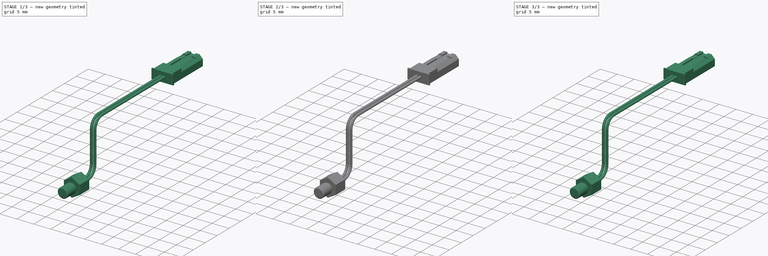
[diagram: build sequence overview — one tinted view per stage of 3, left to right]
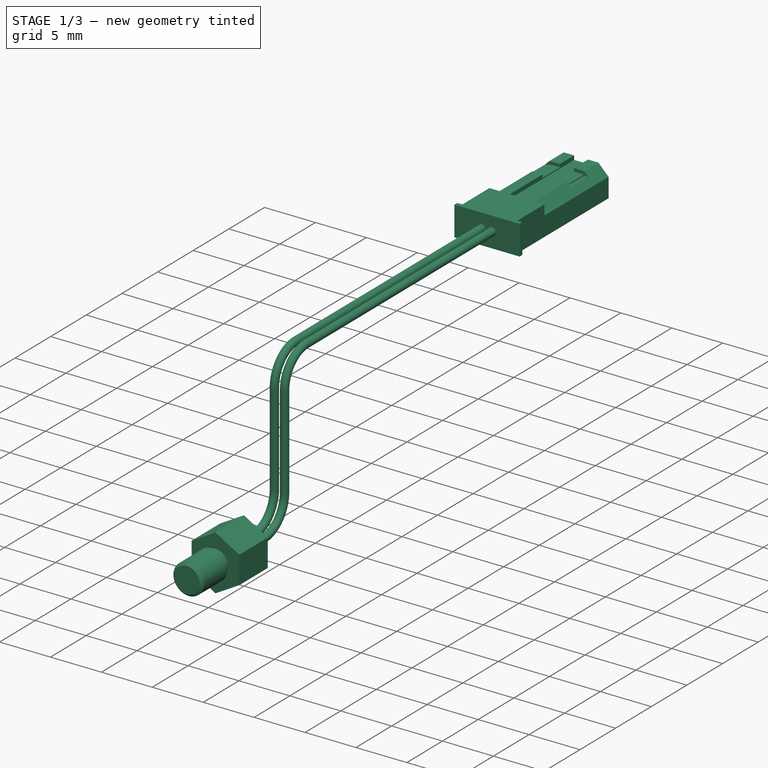
[diagram: stage 1 of 3 — iso view after this stage's code; geometry added in this stage tinted green]
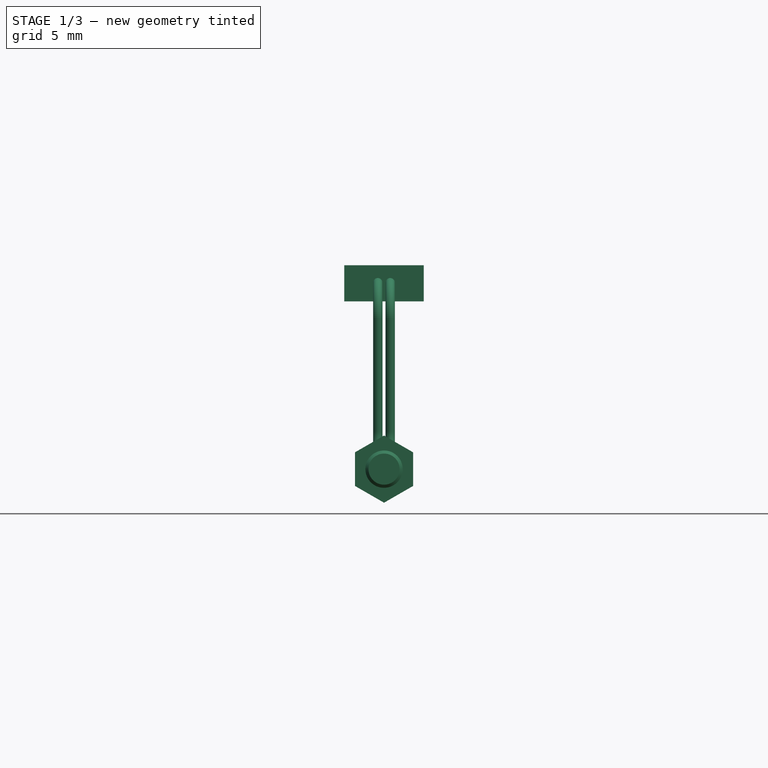
[diagram: stage 1 of 3 — front view after this stage's code; geometry added in this stage tinted green]
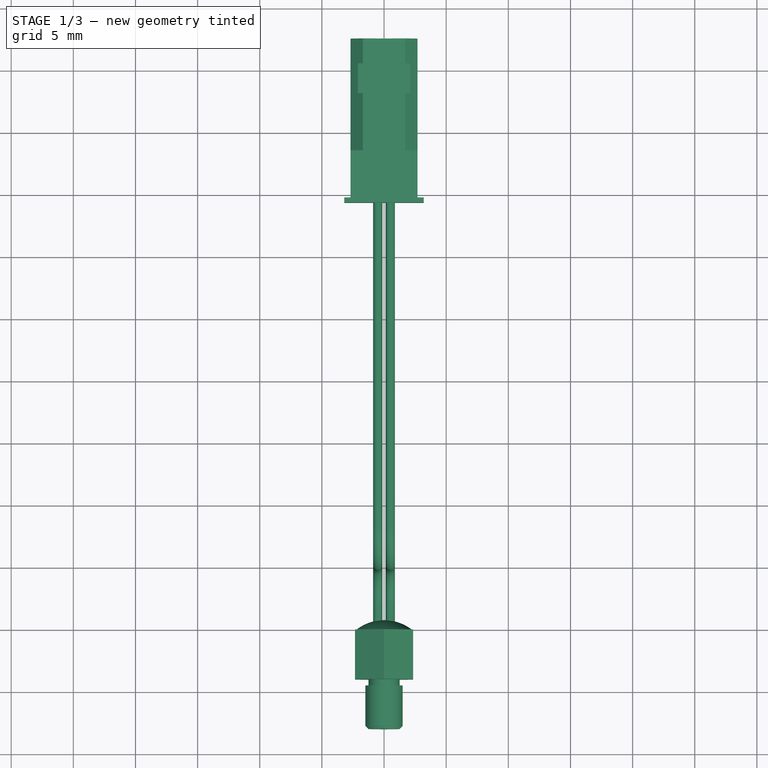
[diagram: stage 1 of 3 — top view after this stage's code; geometry added in this stage tinted green]
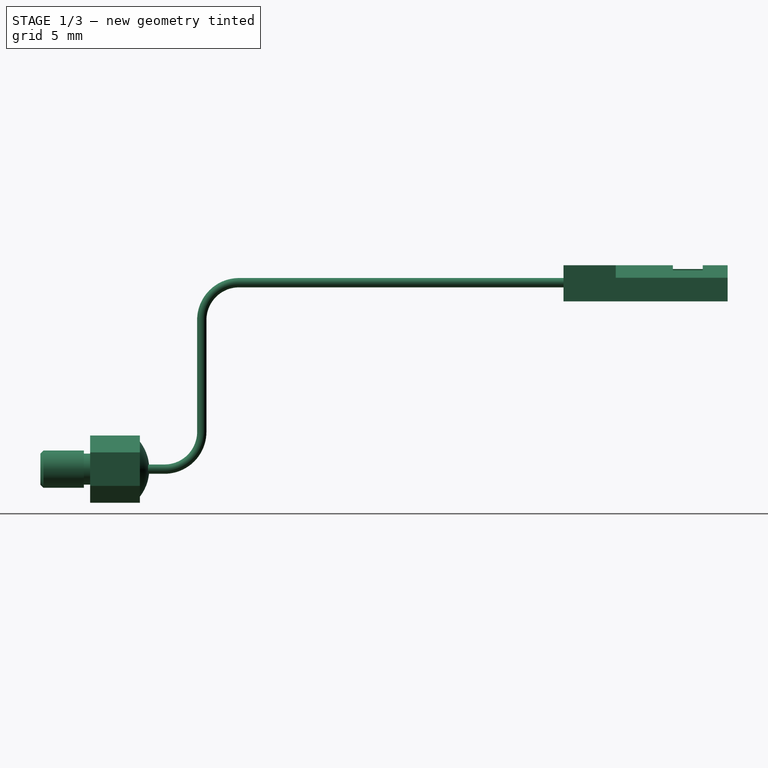
[diagram: stage 1 of 3 — right view after this stage's code; geometry added in this stage tinted green]
FCSTD DOCUMENT  (FreeCAD 0.14R3702 (Git))
Label: hotend-thermistor
License: CC-BY 3.0
LicenseURL: http://creativecommons.org/licenses/by/3.0/
objects: Part::Feature×5, Sketcher::SketchObject×3, PartDesign::Pad×3, App::DocumentObjectGroup×2, Part::Chamfer×1, Part::Sphere×1, Part::MultiFuse×1, Part::Part2DObjectPython×1, Part::Sweep×1, Part::Compound×1
note: 20 computed .brp shape members not serialized (recipe doc carries the construction recipe); baked Part::Feature solids carry a one-line shape summary decoded from their .brp

FEATURE [Part::Sphere] Sphere  label="Sphere-thermistor-back-cover"
  Angle1 = 51
  Angle2 = 90
  Angle3 = 360
  Placement = pos=(0.00718287,-2.85818,0) rot=(-1,0,0;1.5708rad)
  Radius = 3.62
FEATURE [Part::Feature] Fusion001  label="thermistor-bod-final"
  shape: bbox 4.68 x 8.762 x 5.404 mm, 14 faces (baked)
FEATURE [App::DocumentObjectGroup] Group  label="thermistor-body-src"
  Group = -> [Pad,Pad001,Fusion]
FEATURE [Part::Feature] Wire  label="Wire-path"
  shape: bbox 2e-07 x 33.44 x 15 mm, 0 faces, 0 solids (baked)
FEATURE [Part::Part2DObjectPython] Circle  label="wire-section"  # Draft 2D object (typed FeaturePython)
  FirstAngle = 0
  LastAngle = 0
  MakeFace = false
  Placement = pos=(0.496646,0.654968,0.000689865) rot=(1,0,0;1.5708rad)
  Radius = 0.375
FEATURE [Part::Sweep] Sweep  label="wire-master"
  Frenet = true
  Sections = -> [Circle]
  Solid = true
  Spine = -> Wire [Edge5,Edge4,Edge3,Edge2,Edge1]
  Transition = 1
FEATURE [Part::Feature] Sweep001  label="wire-1"
  Placement = pos=(-1,0,0) rot=(0,0,1;0rad)
  shape: bbox 0.75 x 33.44 x 16.31 mm, 7 faces (baked)
FEATURE [Part::Feature] Sweep002  label="wire-2"
  shape: bbox 0.75 x 33.44 x 16.31 mm, 7 faces (baked)
FEATURE [App::DocumentObjectGroup] Group001  label="thermistor-wires-src"
  Group = -> [Sweep,Wire]
FEATURE [Part::Feature] Chamfer001  label="hotend-thermistor-connector-final"
  Placement = pos=(-0.00335414,34.0934,14.9507) rot=(0,0,1;0rad)
  shape: bbox 6.4 x 13.2 x 2.9 mm, 48 faces (baked)
FEATURE [Part::Compound] Compound  label="hotend-thermistor-final"
  Links = -> [Fusion001,Sweep001,Sweep002,Chamfer001]
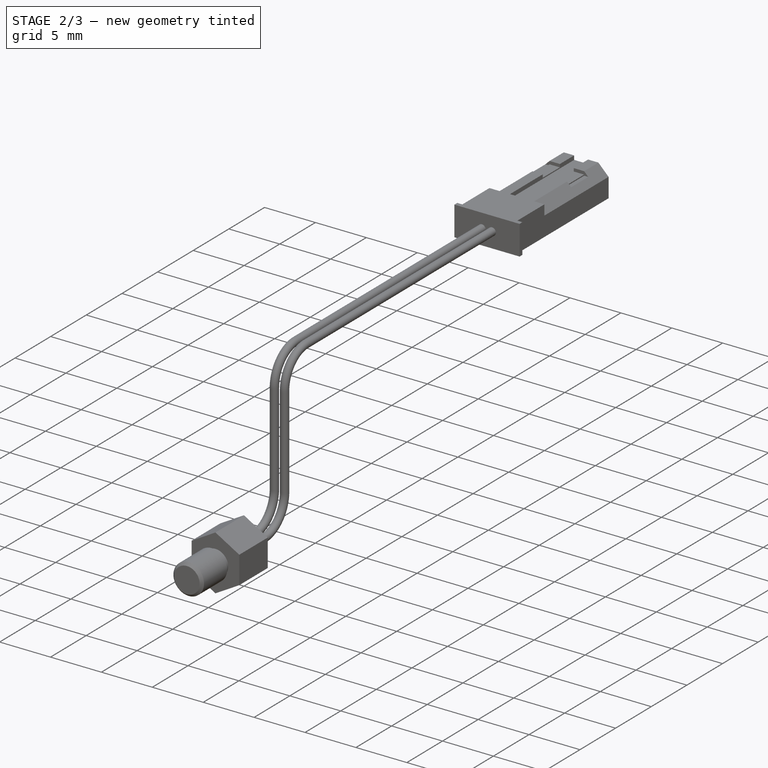
[diagram: stage 2 of 3 — iso view after this stage's code; geometry added in this stage tinted green]
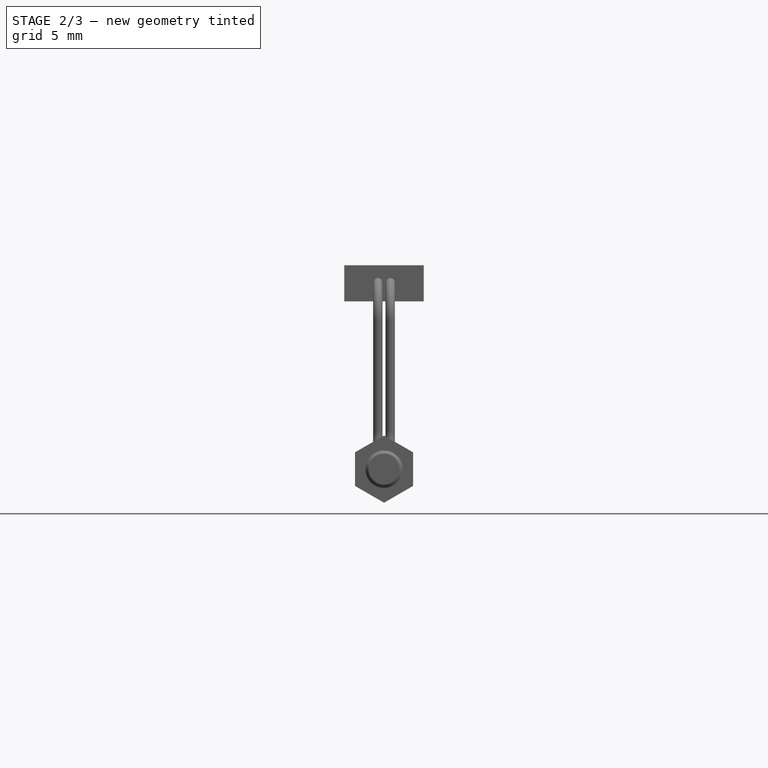
[diagram: stage 2 of 3 — front view after this stage's code; geometry added in this stage tinted green]
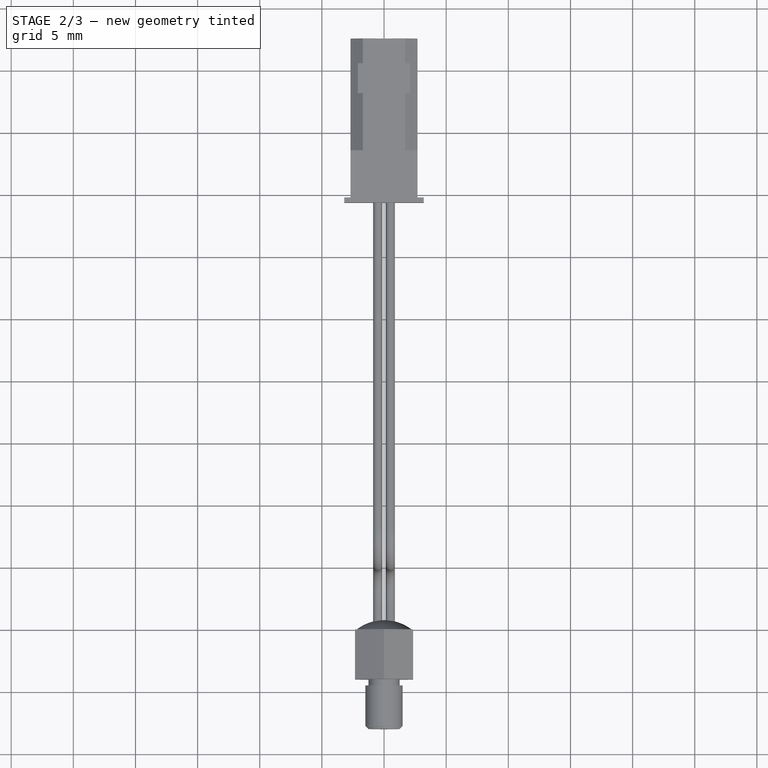
[diagram: stage 2 of 3 — top view after this stage's code; geometry added in this stage tinted green]
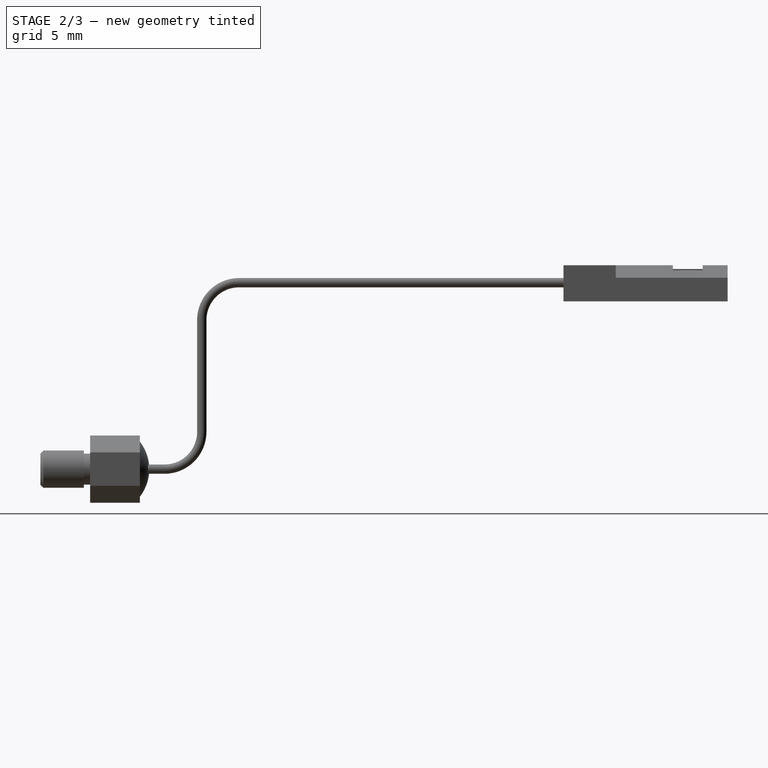
[diagram: stage 2 of 3 — right view after this stage's code; geometry added in this stage tinted green]
FEATURE [Sketcher::SketchObject] Sketch  label="main-body-sketch"
  Placement = pos=(0,0,0) rot=(1,0,0;1.5708rad)
  sketch-geometry (9):
    g0: LineSegment [constr] StartX=0 StartY=2.702 StartZ=0 EndX=0 EndY=0 EndZ=0
    g1: LineSegment [constr] StartX=-2.34 StartY=0 StartZ=0 EndX=0 EndY=0 EndZ=0
    g2: LineSegment StartX=0 StartY=2.702 StartZ=0 EndX=-2.34 EndY=1.351 EndZ=0
    g3: LineSegment StartX=-2.34 StartY=1.351 StartZ=0 EndX=-2.34 EndY=-1.351 EndZ=0
    g4: LineSegment [constr] StartX=-2.34 StartY=1.351 StartZ=0 EndX=0 EndY=0 EndZ=0
    g5: LineSegment StartX=-2.34 StartY=-1.351 StartZ=0 EndX=0 EndY=-2.702 EndZ=0
    g6: LineSegment StartX=0 StartY=-2.702 StartZ=0 EndX=2.34 EndY=-1.351 EndZ=0
    g7: LineSegment StartX=2.34 StartY=-1.351 StartZ=0 EndX=2.34 EndY=1.351 EndZ=0
    g8: LineSegment StartX=2.34 StartY=1.351 StartZ=0 EndX=0 EndY=2.702 EndZ=0
  constraints (22):
    c: Horizontal(g1)
    c: Coincident(g2,g3)
    c: PointOnObject(g1,g3)
    c: Coincident(g2,g0)
    c: Coincident(g2,g4)
    c: Symmetric(g3,g2,g1)
    c: Angle(g0,g4) = 1.0472
    c: Vertical(g0)
    c: Coincident(g0,g1)
    c: Coincident(g4,g0)
    c: Equal(g4,g0)
    c: Coincident(g3,g5)
    c: Coincident(g5,g6)
    c: Coincident(g6,g7)
    c: Vertical(g7)
    c: Coincident(g7,g8)
    c: Coincident(g8,g0)
    c: Symmetric(g3,g6,g0)
    c: Symmetric(g5,g0,g1)
    c: Symmetric(g7,g2,g0)
    c: DistanceX(g2,g7) = 4.68
    c: Coincident(g0,g-1)
FEATURE [PartDesign::Pad] Pad  label="main-body"
  Length = 4
  Length2 = 100
  Placement = pos=(0,0,0) rot=(1,0,0;1.5708rad)
  Sketch = -> Sketch
  Type = 0
FEATURE [Sketcher::SketchObject] Sketch001  label="cylinder-1-sketch"
  Placement = pos=(0,-4,0) rot=(1,0,0;1.5708rad)
  Support = -> Pad [Face8]
  sketch-geometry (1):
    g0: Circle CenterX=0 CenterY=0 CenterZ=0 NormalX=0 NormalY=0 NormalZ=1 Radius=1.25
  constraints (2):
    c: Coincident(g0,g-1)
    c: Radius(g0) = 1.25
FEATURE [PartDesign::Pad] Pad001  label="cylinder-1"
  Length = 0.5
  Length2 = 100
  Placement = pos=(0,0,0) rot=(1,0,0;1.5708rad)
  Sketch = -> Sketch001
  Type = 0
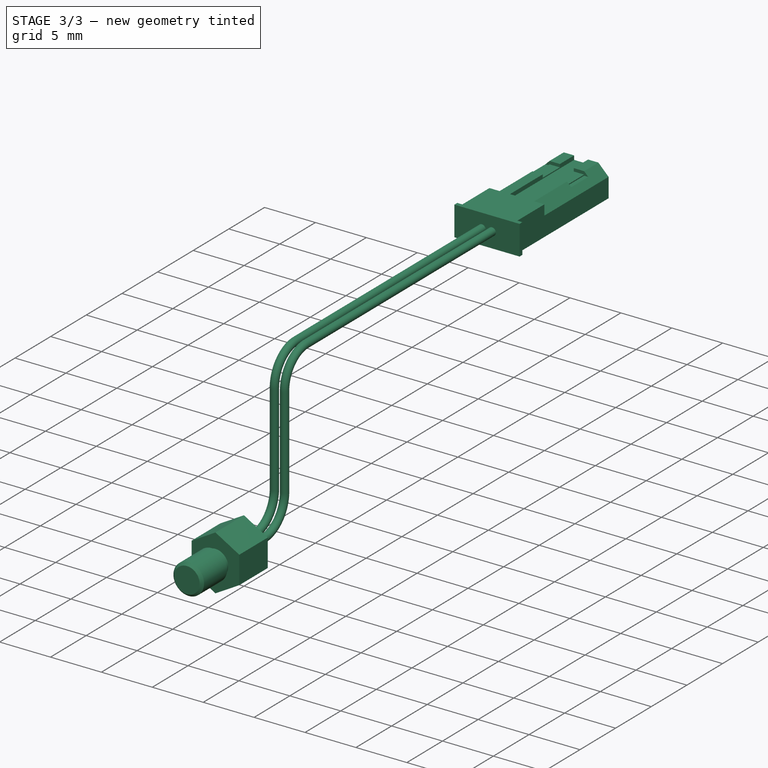
[diagram: stage 3 of 3 — iso view after this stage's code; geometry added in this stage tinted green]
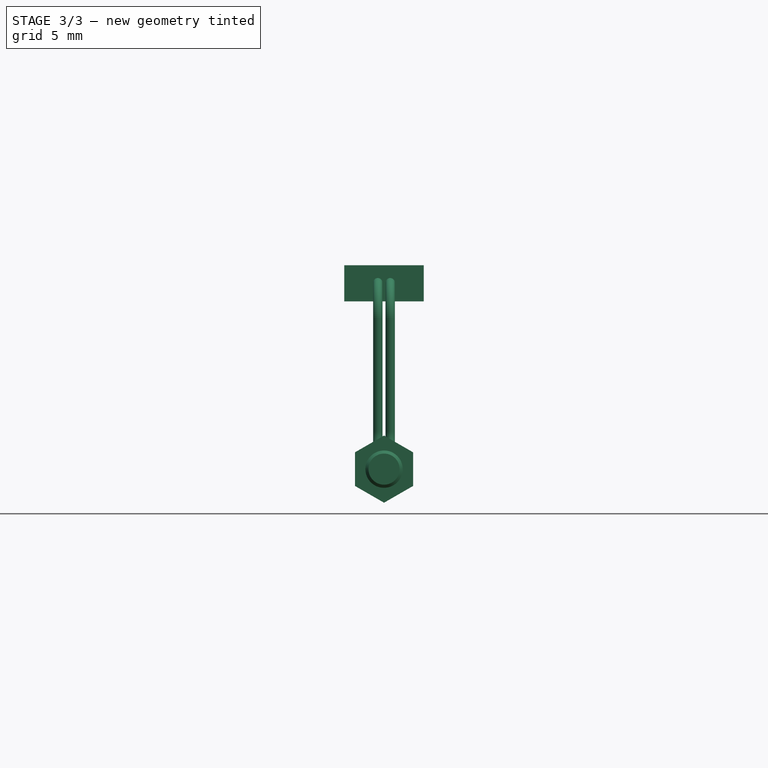
[diagram: stage 3 of 3 — front view after this stage's code; geometry added in this stage tinted green]
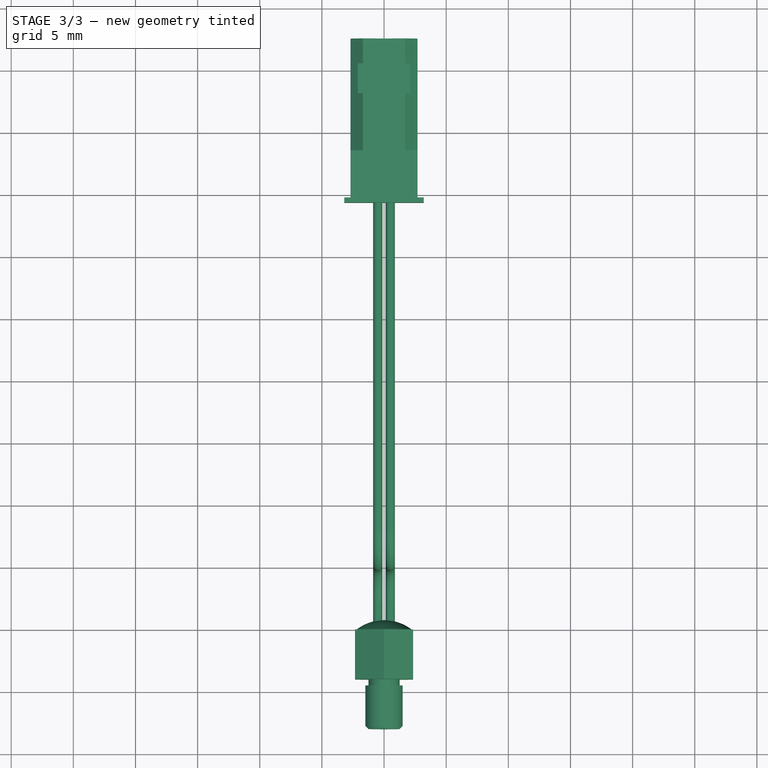
[diagram: stage 3 of 3 — top view after this stage's code; geometry added in this stage tinted green]
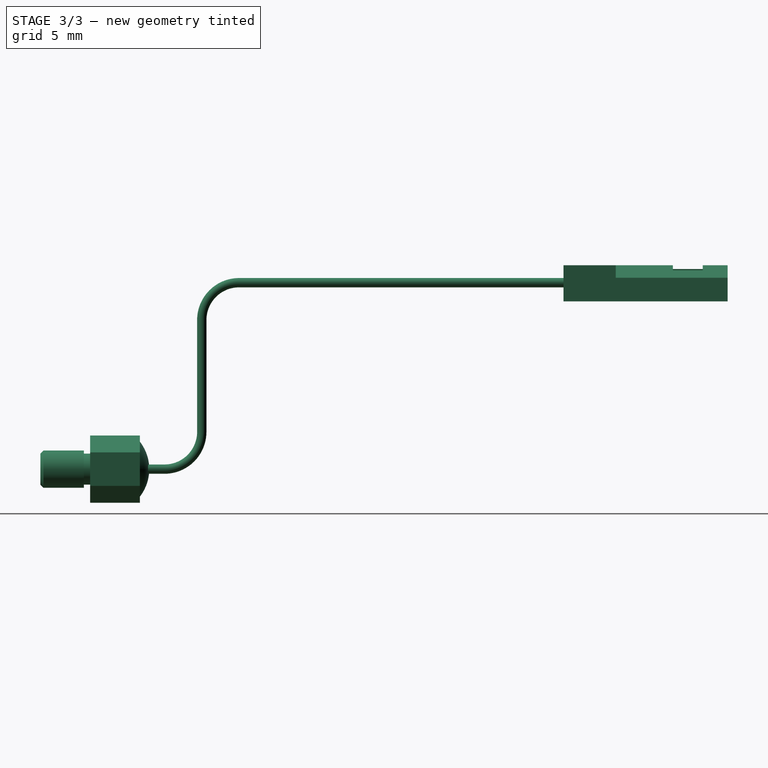
[diagram: stage 3 of 3 — right view after this stage's code; geometry added in this stage tinted green]
FEATURE [Sketcher::SketchObject] Sketch002  label="cylinder-2-sketch"
  Placement = pos=(0,-4.5,0) rot=(1,0,0;1.5708rad)
  Support = -> Pad001 [Face10]
  sketch-geometry (1):
    g0: Circle CenterX=0 CenterY=0 CenterZ=0 NormalX=0 NormalY=0 NormalZ=1 Radius=1.5
  constraints (2):
    c: Coincident(g0,g-1)
    c: Radius(g0) = 1.5
FEATURE [PartDesign::Pad] Pad002  label="cylinder-2"
  Length = 3.5
  Length2 = 100
  Placement = pos=(0,0,0) rot=(1,0,0;1.5708rad)
  Sketch = -> Sketch002
  Type = 0
FEATURE [Part::Chamfer] Chamfer
  Base = -> Pad002
  Edges = 1 edges r=0.25: [Edge24]
FEATURE [Part::MultiFuse] Fusion  label="thermistor-body"
  Shapes = -> [Chamfer,Sphere]
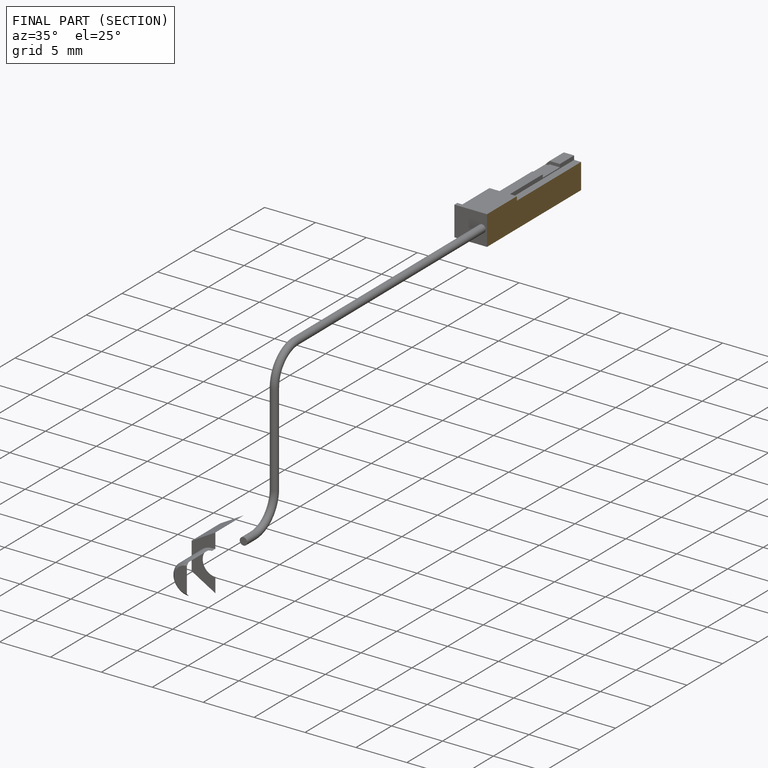
[diagram: finished part — half-section view (interior)]
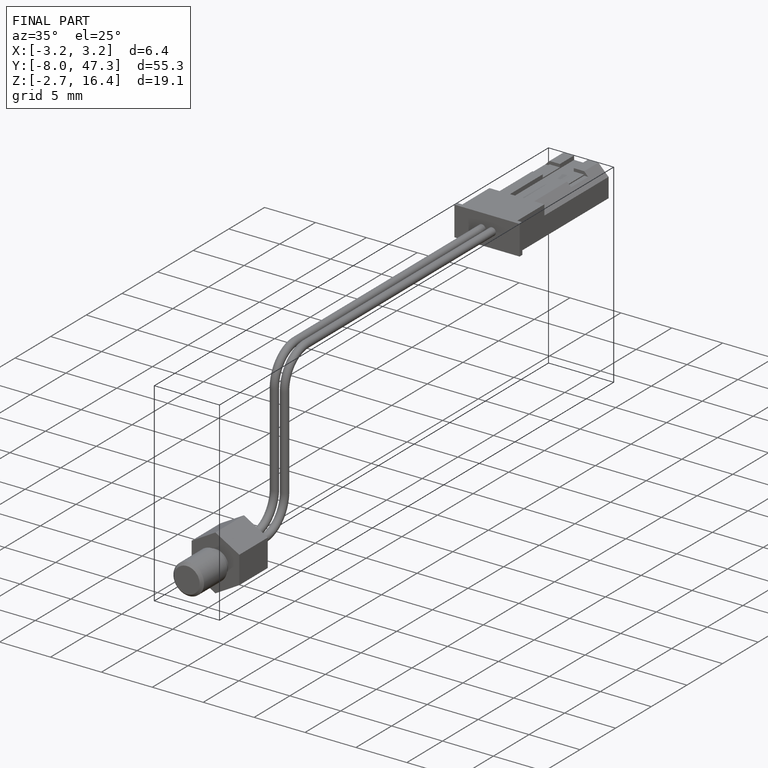
[diagram: finished part — iso view with bounding-box wireframe]
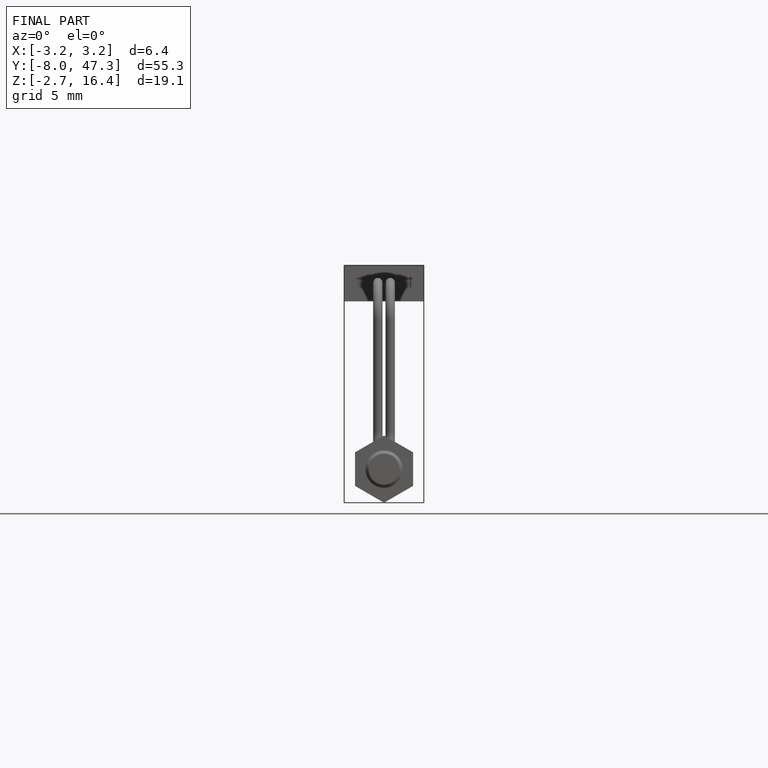
[diagram: finished part — front view with bounding-box wireframe]
